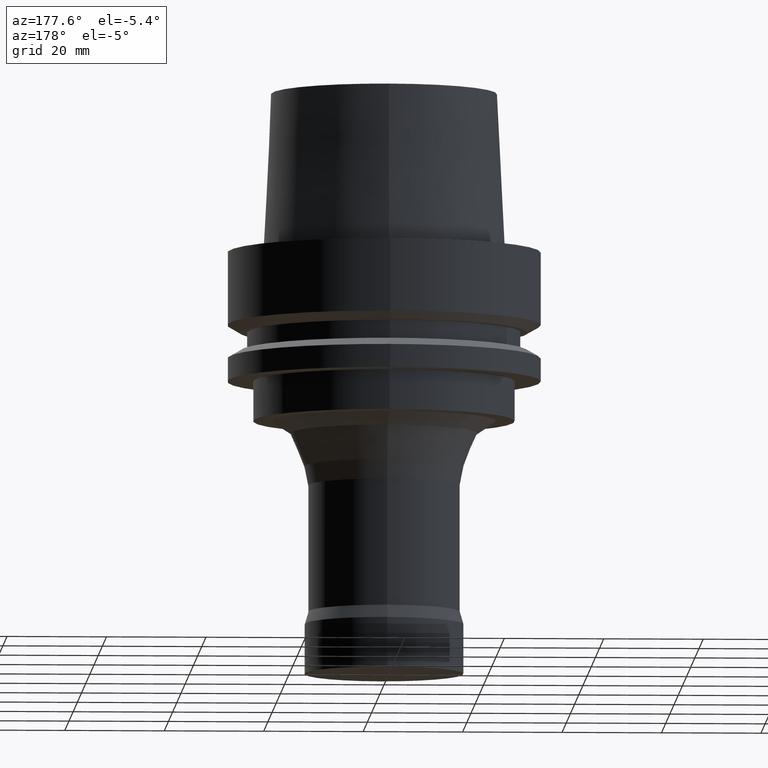
[diagram: clean part render]
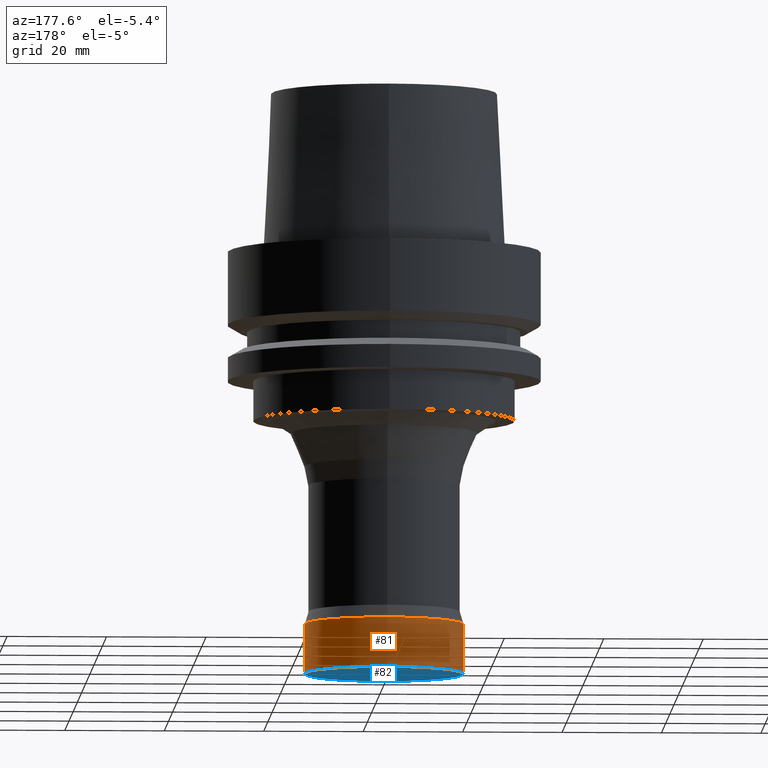
[diagram: same view with the hole feature highlighted: cylindrical wall and planar end face, labeled with their STEP entity ids]
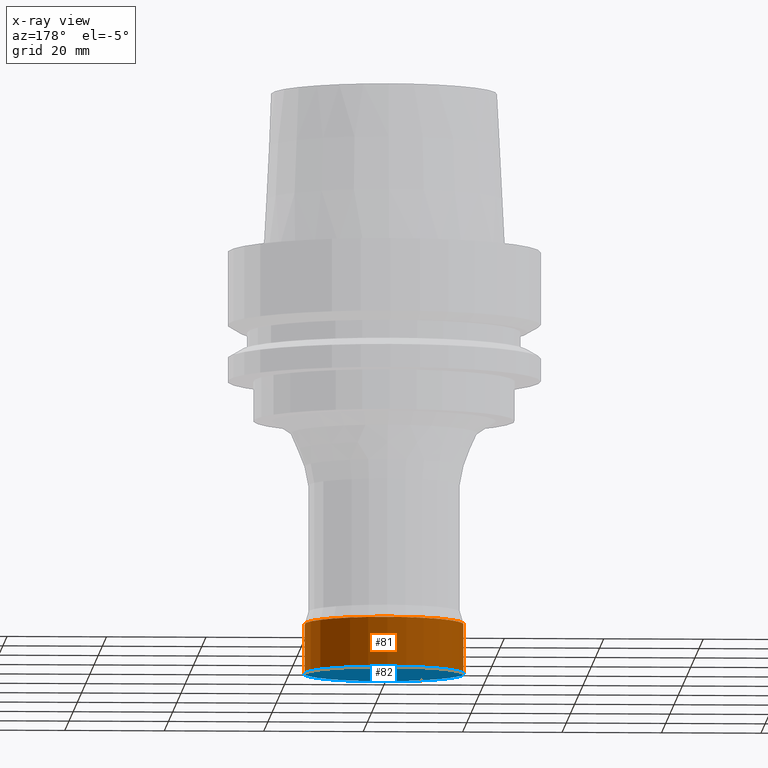
[diagram: x-ray of the same camera — body ghosted, the hole faces saturated]
A machine part, auxiliary view. The highlighted faces form one hole feature of diameter 32 mm: the cylindrical wall (entity #81, orange) and its adjacent planar end face (entity #82, blue) — they share a circular edge in the B-rep.
The next image is the same camera in x-ray (body ghosted, the hole faces saturated) — the bore reads through the body.
Wall:
#81=ADVANCED_FACE('',(#114,#115),#116,.T.);
#114=FACE_BOUND('',#172,.T.);
#115=FACE_BOUND('',#173,.T.);
#116=CYLINDRICAL_SURFACE('',#174,16.0);
#172=EDGE_LOOP('',(#242));
#173=EDGE_LOOP('',(#243));
#174=AXIS2_PLACEMENT_3D('',#244,#245,#246);
#242=ORIENTED_EDGE('',*,*,#317,.F.);
#243=ORIENTED_EDGE('',*,*,#316,.T.);
#244=CARTESIAN_POINT('',(4.89858719658941E-015,9.79717439317882E-015,-80.0));
#245=DIRECTION('',(-6.12323399573677E-017,-1.22464679914735E-016,1.0));
#246=DIRECTION('',(-1.23259516440783E-032,1.0,1.22464679914735E-016));
#316=EDGE_CURVE('',#341,#341,#342,.T.);
#317=EDGE_CURVE('',#343,#343,#344,.T.);
#341=VERTEX_POINT('',#379);
#342=CIRCLE('',#380,16.0);
#343=VERTEX_POINT('',#381);
#344=CIRCLE('',#382,16.0);
#379=CARTESIAN_POINT('',(4.59242549680257E-015,16.0,-75.0));
#380=AXIS2_PLACEMENT_3D('',#423,#424,#425);
#381=CARTESIAN_POINT('',(5.20474889637625E-015,16.0,-85.0));
#382=AXIS2_PLACEMENT_3D('',#426,#427,#428);
#423=CARTESIAN_POINT('',(4.59242549680257E-015,9.18485099360515E-015,-75.0));
#424=DIRECTION('',(6.12323399573677E-017,1.22464679914735E-016,-1.0));
#425=DIRECTION('',(-1.23259516440783E-032,1.0,1.22464679914735E-016));
#426=CARTESIAN_POINT('',(5.20474889637625E-015,1.04094977927525E-014,-85.0));
#427=DIRECTION('',(6.12323399573677E-017,1.22464679914735E-016,-1.0));
#428=DIRECTION('',(-1.23259516440783E-032,1.0,1.22464679914735E-016));
End face:
#82=ADVANCED_FACE('',(#117),#118,.T.);
#117=FACE_OUTER_BOUND('',#175,.T.);
#118=PLANE('',#176);
#175=EDGE_LOOP('',(#247));
#176=AXIS2_PLACEMENT_3D('',#248,#249,#250);
#247=ORIENTED_EDGE('',*,*,#317,.T.);
#248=CARTESIAN_POINT('',(5.20474889637625E-015,8.00000000000001,-85.0));
#249=DIRECTION('',(6.12323399573677E-017,1.22464679914735E-016,-1.0));
#250=DIRECTION('',(-1.23259516440783E-032,1.0,1.22464679914735E-016));
#317=EDGE_CURVE('',#343,#343,#344,.T.);
#343=VERTEX_POINT('',#381);
#344=CIRCLE('',#382,16.0);
#381=CARTESIAN_POINT('',(5.20474889637625E-015,16.0,-85.0));
#382=AXIS2_PLACEMENT_3D('',#426,#427,#428);
#426=CARTESIAN_POINT('',(5.20474889637625E-015,1.04094977927525E-014,-85.0));
#427=DIRECTION('',(6.12323399573677E-017,1.22464679914735E-016,-1.0));
#428=DIRECTION('',(-1.23259516440783E-032,1.0,1.22464679914735E-016));